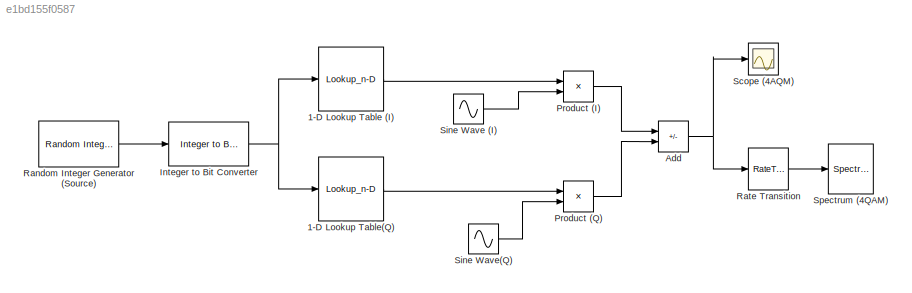
MODEL slx_e1bd155f0587
KIND model
CONFIG AbsTol = auto
CONFIG EnableMultiTasking = off
CONFIG FixedStep = auto
CONFIG MaxStep = auto
CONFIG MinStep = auto
CONFIG RelTol = 1e-3
CONFIG SampleTimeConstraint = Unconstrained
CONFIG SolverName = VariableStepAuto
CONFIG StartTime = 0.0
CONFIG StopTime = 10.0
BLOCK [Lookup_n-D] 1-D Lookup Table (I)
  BreakpointsForDimension1 = [0,1]
  BreakpointsForDimension1FirstPoint = 10
  BreakpointsForDimension1Spacing = 12
  BreakpointsForDimension2FirstPoint = 10
  BreakpointsForDimension2Spacing = 12
  DiagnosticForOutOfRangeInput = Error
  IndexSearchMethod = Evenly spaced points
  InputPortMap = u0
  InternalRulePriority = Speed
  InterpMethod = Flat
  LookupTableObject = ''
  NumberOfTableDimensions = 1
  RndMeth = Simplest
  Table = [-sqrt(0.5), sqrt(0.5)]
BLOCK [Lookup_n-D] 1-D Lookup Table(Q)
  BreakpointsForDimension1 = [0,1]
  BreakpointsForDimension1FirstPoint = 10
  BreakpointsForDimension1Spacing = 12
  BreakpointsForDimension2FirstPoint = 10
  BreakpointsForDimension2Spacing = 12
  DiagnosticForOutOfRangeInput = Error
  IndexSearchMethod = Evenly spaced points
  InputPortMap = u0
  InternalRulePriority = Speed
  InterpMethod = Flat
  LookupTableObject = ''
  NumberOfTableDimensions = 1
  RndMeth = Simplest
  Table = [-sqrt(0.5), sqrt(0.5)]
BLOCK [Sum] Add
  IconShape = rectangular
  Inputs = +-
BLOCK [Reference] Integer to Bit Converter  REF=simulink/Logic and Bit
Operations/Integer to Bit
Converter
  SourceBlock = simulink/Logic and Bit\nOperations/Integer to Bit\nConverter
  SourceType = Integer to Bit Converter
BLOCK [Product] Product (I)
BLOCK [Product] Product (Q)
BLOCK [Reference] Random Integer Generator (Source)  REF=commrandsrc3/Random Integer
Generator
  SourceBlock = commrandsrc3/Random Integer\nGenerator
  SourceType = Random Integer Generator
BLOCK [RateTransition] Rate Transition
  OutPortSampleTime = 0.5e-4
BLOCK [Scope] Scope (4AQM)
  Floating = off
  NumInputPorts = 1
  ScopeSpecificationString = Simulink.scopes.TimeScopeBlockCfg('CurrentConfiguration', extmgr.ConfigurationSet(extmgr.Configuration('Core','General UI',true),extmgr.Configuration('Core','Source UI',true),extmgr.Configuration('Sources','WiredSimulink',true),extmgr.Configuration('Visuals','Time Domain',true,'SerializedDisplays',{struct('MinYLimReal','-1.25','MaxYLimReal','1.25','YLabelReal','','MinYLimMag','0.00000','MaxYLimMag...<+1490ch>
BLOCK [Sin] Sine Wave (I)
  Offset = 1250
  SampleTime = 1e-7
  Samples = 5000
  SineType = Sample based
BLOCK [Sin] Sine Wave(Q)
  SampleTime = 1e-7
  Samples = 5000
  SineType = Sample based
BLOCK [SpectrumAnalyzer] Spectrum (4QAM)
  GraphicalSettings = {"GraphicalSettings":{"Style":{"BackgroundColor":[0.12941176470588237,0.12941176470588237,0.12941176470588237],"AxesColor":[0.07058823529411765,0.07058823529411765,0.07058823529411765],"LabelsColor":[0.8509803921568627,0.8509803921568627,0.8509803921568627],"PreserveColors":false,"Visible":[true],"LineStyle":["-"],"LineColor":[[1,0.9098039215686274,0.39215686274509803]],"LineWidth":[1.5],"Marker":...<+942ch>
  ScopeFrameLocation = window
  SelectedToolstripTab = spectrumAnalyzerToolstrip.channelMeasurementsTab
  WasSavedAsWebScope = on
  WindowPosition = [1.000000,49.000000,1280.000000,729.000000,]
  YLimits = [-49.61393348,16.36843491]
LINE 1-D Lookup Table (I):1 -> Product (I):1
LINE 1-D Lookup Table(Q):1 -> Product (Q):1
NET Add:1 -> Rate Transition:1, Scope (4AQM):1
NET Integer to Bit Converter:1 -> 1-D Lookup Table (I):1, 1-D Lookup Table(Q):1
LINE Product (I):1 -> Add:1
LINE Product (Q):1 -> Add:2
LINE Random Integer Generator (Source):1 -> Integer to Bit Converter:1
LINE Rate Transition:1 -> Spectrum (4QAM):1
LINE Sine Wave (I):1 -> Product (I):2
LINE Sine Wave(Q):1 -> Product (Q):2
note: NET lines group one-source signal fan-out (src -> all destinations, sorted); 1:1 wires keep LINE
